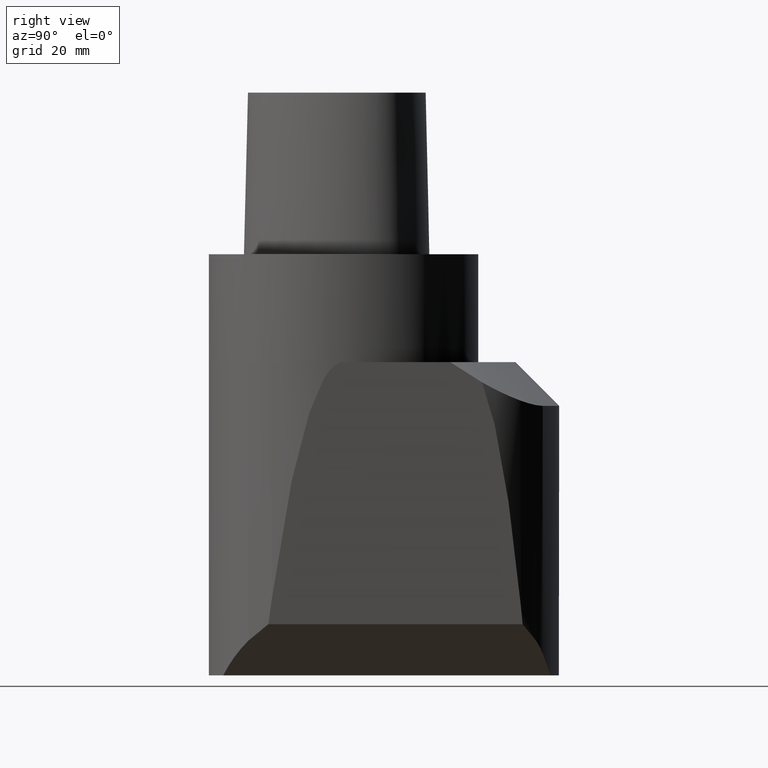
[diagram: clean part render]
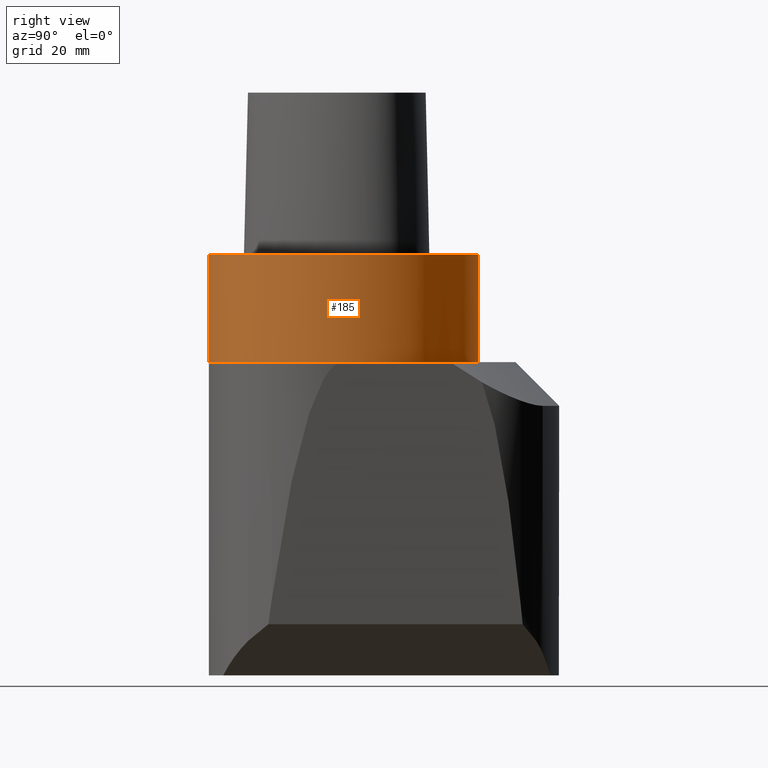
[diagram: same view with one face highlighted and labeled with its STEP entity id]
A machine part, right view. The second image highlights one B-rep face of the part: STEP entity #185.
In plain terms, the highlighted cylindrical surface (bore or boss wall) has radius 39.9925 mm, axis along (0, -0, -1).
Its self-contained STEP definition (entity closure, byte-faithful):
#124=EDGE_CURVE('240[2]',#337,#337,#338,.T.);
#150=EDGE_CURVE('240[2]',#375,#375,#376,.T.);
#185=ADVANCED_FACE('240[2]',(#424,#425),#426,.T.);
#337=VERTEX_POINT('',#673);
#338=CIRCLE('',#674,39.9925000000001);
#375=VERTEX_POINT('',#803);
#376=CIRCLE('',#804,39.9925000000002);
#424=FACE_BOUND('',#893,.T.);
#425=FACE_BOUND('',#894,.T.);
#426=CYLINDRICAL_SURFACE('',#895,39.9925000000002);
#673=CARTESIAN_POINT('',(1.95943487863593E-015,39.9925,-32.0000000000026));
#674=AXIS2_PLACEMENT_3D('',#1674,#1675,#1676);
#803=CARTESIAN_POINT('',(6.31088724176809E-030,39.9925000000002,-1.4210854715202E-013));
#804=AXIS2_PLACEMENT_3D('',#1715,#1716,#1717);
#893=EDGE_LOOP('',(#1766));
#894=EDGE_LOOP('',(#1767));
#895=AXIS2_PLACEMENT_3D('',#1768,#1769,#1770);
#1674=CARTESIAN_POINT('',(1.95943487863592E-015,-1.13686837721616E-013,-32.0000000000025));
#1675=DIRECTION('',(6.12323399573677E-017,-3.0538777245272E-015,-1.0));
#1676=DIRECTION('',(1.82168926285713E-031,1.0,-3.0538777245272E-015));
#1715=CARTESIAN_POINT('',(0.0,0.0,0.0));
#1716=DIRECTION('',(6.12323399573677E-017,-3.0538777245272E-015,-1.0));
#1717=DIRECTION('',(1.82168926285713E-031,1.0,-3.0538777245272E-015));
#1766=ORIENTED_EDGE('',*,*,#124,.F.);
#1767=ORIENTED_EDGE('',*,*,#150,.T.);
#1768=CARTESIAN_POINT('',(9.7971743931796E-016,-5.6843418860808E-014,-16.0000000000013));
#1769=DIRECTION('',(6.12323399573677E-017,-3.0538777245272E-015,-1.0));
#1770=DIRECTION('',(1.82168926285713E-031,1.0,-3.0538777245272E-015));